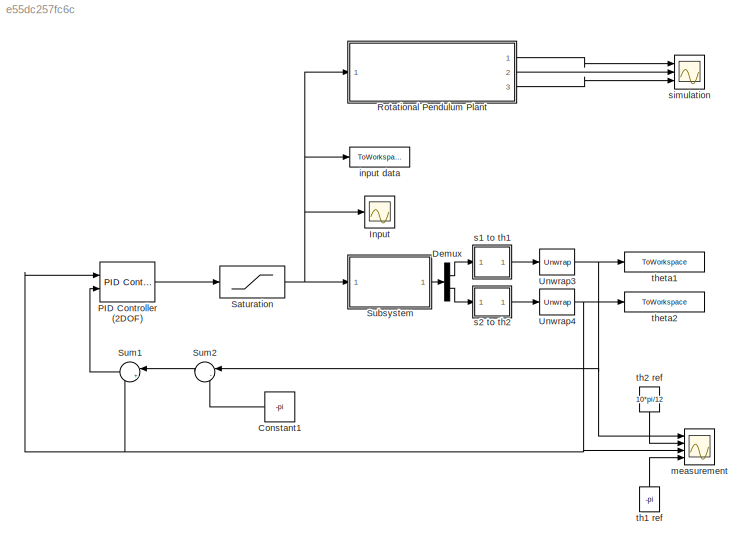
MODEL slx_e55dc257fc6c
KIND model
CONFIG AbsTol = auto
CONFIG EnableMultiTasking = on
CONFIG FixedStep = auto
CONFIG MaxStep = auto
CONFIG MinStep = auto
CONFIG RelTol = 1e-3
CONFIG SampleTimeConstraint = Unconstrained
CONFIG SolverName = ode45
CONFIG StartTime = 0.0
CONFIG StopTime = 60
BLOCK [Constant] Constant1
  NameLocation = top
  Value = -pi
BLOCK [Demux] Demux
  Outputs = 2
  Ports = [1, 2]
BLOCK [Scope] Input
  Floating = off
  NumInputPorts = 1
  Ports = [1]
  ScopeSpecificationString = Simulink.scopes.TimeScopeBlockCfg('CurrentConfiguration', extmgr.ConfigurationSet(extmgr.Configuration('Core','General UI',true),extmgr.Configuration('Core','Source UI',true),extmgr.Configuration('Sources','WiredSimulink',true,'DataLoggingVariableName','ScopeData2'),extmgr.Configuration('Visuals','Time Domain',true,'SerializedDisplays',{struct('MinYLimReal','-1.2343','MaxYLimReal','1.10873','YLabe...<+1472ch>
BLOCK [Reference] PID Controller (2DOF)  REF=pid_lib/PID Controller (2DOF)
  Ports = [2, 1]
  SourceBlock = pid_lib/PID Controller (2DOF)
  SourceProductBaseCode = SL
  SourceType = PID 2dof
BLOCK [ModelReference] Rotational Pendulum Plant
  Commented = on
  ModelNameDialog = Non_linear_model.slx
  ModelReferenceVersion = 3.13
  Ports = [1, 3]
BLOCK [Saturate] Saturation
  LowerLimit = -1
  UpperLimit = 1
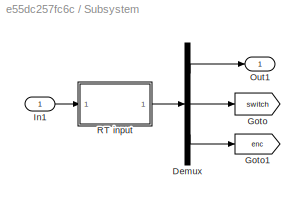
BLOCK [SubSystem] Subsystem
  Ports = [1, 1]
  RequestExecContextInheritance = off
BLOCK [Demux] Subsystem/Demux
  Outputs = [2 4 1]
  Ports = [1, 3]
BLOCK [Goto] Subsystem/Goto
  GotoTag = switch
  TagVisibility = global
BLOCK [Goto] Subsystem/Goto1
  GotoTag = enc
  TagVisibility = global
BLOCK [Inport] Subsystem/In1
BLOCK [Outport] Subsystem/Out1
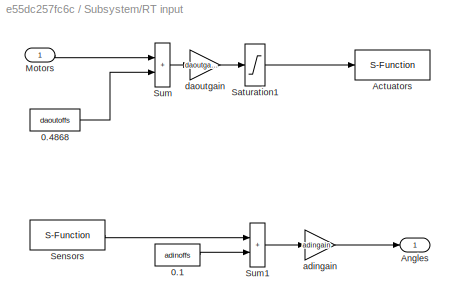
BLOCK [SubSystem] Subsystem/RT input
  Ports = [1, 1]
  RequestExecContextInheritance = off
BLOCK [Constant] Subsystem/RT input/0.1
  Value = adinoffs
BLOCK [Constant] Subsystem/RT input/0.4868
  Value = daoutoffs
BLOCK [S-Function] Subsystem/RT input/Actuators
  EnableBusSupport = off
  FunctionName = sfusbout
  Parameters = Ts, fugihandle
  Ports = [1]
  SFcnIsStateOwnerBlock = off
  SFunctionDeploymentMode = off
BLOCK [Outport] Subsystem/RT input/Angles
BLOCK [Inport] Subsystem/RT input/Motors
BLOCK [Saturate] Subsystem/RT input/Saturation1
  LowerLimit = -10
  UpperLimit = 10
BLOCK [S-Function] Subsystem/RT input/Sensors
  EnableBusSupport = off
  FunctionName = sfusbin
  Parameters = Ts, fugihandle, channels
  Ports = [0, 1]
  SFcnIsStateOwnerBlock = off
  SFunctionDeploymentMode = off
BLOCK [Sum] Subsystem/RT input/Sum
  IconShape = rectangular
  InputSameDT = on
  OutDataTypeStr = Inherit: Same as first input
  Ports = [2, 1]
  SaturateOnIntegerOverflow = on
BLOCK [Sum] Subsystem/RT input/Sum1
  IconShape = rectangular
  InputSameDT = on
  OutDataTypeStr = Inherit: Same as first input
  Ports = [2, 1]
  SaturateOnIntegerOverflow = on
BLOCK [Gain] Subsystem/RT input/adingain
  Gain = adingain
  OutDataTypeStr = Inherit: Same as input
  ParamDataTypeStr = Inherit: Same as input
  SaturateOnIntegerOverflow = on
BLOCK [Gain] Subsystem/RT input/daoutgain
  Gain = daoutgain
  OutDataTypeStr = Inherit: Same as input
  ParamDataTypeStr = Inherit: Same as input
  SaturateOnIntegerOverflow = on
BLOCK [Sum] Sum1
  Inputs = |+-
  NameLocation = top
  Ports = [2, 1]
BLOCK [Sum] Sum2
  Inputs = |-+
  NameLocation = top
  Ports = [2, 1]
BLOCK [Reference] Unwrap3  REF=dspsigops/Unwrap
  Ports = [1, 1]
  SourceBlock = dspsigops/Unwrap
  SourceProductBaseCode = DS
  SourceType = Unwrap
  UserDataPersistent = on
BLOCK [Reference] Unwrap4  REF=dspsigops/Unwrap
  Ports = [1, 1]
  SourceBlock = dspsigops/Unwrap
  SourceProductBaseCode = DS
  SourceType = Unwrap
  UserDataPersistent = on
BLOCK [ToWorkspace] input data
  FixptAsFi = on
  MaxDataPoints = inf
  Ports = [1]
  SampleTime = h
  SaveFormat = Timeseries
  VariableName = input_data
BLOCK [Scope] measurement
  Floating = off
  NumInputPorts = 4
  Ports = [4]
  ScopeSpecificationString = Simulink.scopes.TimeScopeBlockCfg('CurrentConfiguration', extmgr.ConfigurationSet(extmgr.Configuration('Core','General UI',true),extmgr.Configuration('Core','Source UI',true),extmgr.Configuration('Sources','WiredSimulink',true,'DataLoggingVariableName','measurement','DataLoggingSaveFormat','StructureWithTime'),extmgr.Configuration('Visuals','Time Domain',true,'SerializedDisplays',{struct('MinYLimR...<+1506ch>
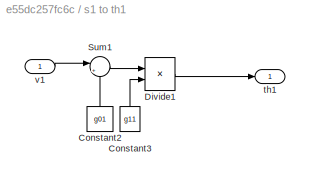
BLOCK [SubSystem] s1 to th1
  NameLocation = top
  Ports = [1, 1]
  RequestExecContextInheritance = off
BLOCK [Constant] s1 to th1/Constant2
  NameLocation = right
  Value = g01
BLOCK [Constant] s1 to th1/Constant3
  NameLocation = right
  Value = g11
BLOCK [Product] s1 to th1/Divide1
  Inputs = */
  Ports = [2, 1]
BLOCK [Sum] s1 to th1/Sum1
  Inputs = |+-
  Ports = [2, 1]
BLOCK [Outport] s1 to th1/th1
BLOCK [Inport] s1 to th1/v1
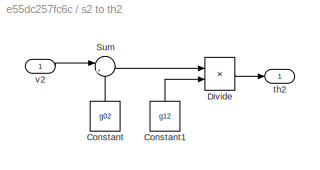
BLOCK [SubSystem] s2 to th2
  Ports = [1, 1]
  RequestExecContextInheritance = off
BLOCK [Constant] s2 to th2/Constant
  NameLocation = right
  Value = g02
BLOCK [Constant] s2 to th2/Constant1
  NameLocation = right
  Value = g12
BLOCK [Product] s2 to th2/Divide
  Inputs = */
  Ports = [2, 1]
BLOCK [Sum] s2 to th2/Sum
  Inputs = |+-
  NameLocation = top
  Ports = [2, 1]
BLOCK [Outport] s2 to th2/th2
BLOCK [Inport] s2 to th2/v2
BLOCK [Scope] simulation
  Commented = on
  Floating = off
  NumInputPorts = 3
  Ports = [3]
  ScopeSpecificationString = Simulink.scopes.TimeScopeBlockCfg('CurrentConfiguration', extmgr.ConfigurationSet(extmgr.Configuration('Core','General UI',true),extmgr.Configuration('Core','Source UI',true),extmgr.Configuration('Sources','WiredSimulink',true,'DataLoggingVariableName','ScopeData1'),extmgr.Configuration('Visuals','Time Domain',true,'SerializedDisplays',{struct('MinYLimReal','-17.53471','MaxYLimReal','6.40244','YLa...<+1588ch>
BLOCK [Constant] th1 ref
  NameLocation = right
  Value = -pi
BLOCK [Constant] th2 ref
  NameLocation = right
  Value = 10*pi/12
BLOCK [ToWorkspace] theta1
  FixptAsFi = on
  MaxDataPoints = inf
  NameLocation = top
  Ports = [1]
  SampleTime = h
  SaveFormat = Timeseries
  VariableName = th1_data
BLOCK [ToWorkspace] theta2
  FixptAsFi = on
  MaxDataPoints = inf
  Ports = [1]
  SampleTime = h
  SaveFormat = Timeseries
  VariableName = th2_data
LINE Constant1:1 -> Sum2:2
LINE Demux:1 -> s1 to th1:1
LINE Demux:2 -> s2 to th2:1
LINE PID Controller (2DOF):1 -> Saturation:1
LINE Rotational Pendulum Plant:1 -> simulation:1
LINE Rotational Pendulum Plant:2 -> simulation:2
LINE Rotational Pendulum Plant:3 -> simulation:3
NET Saturation:1 -> Input:1, Rotational Pendulum Plant:1, Subsystem:1, input data:1
LINE Subsystem/Demux:1 -> Subsystem/Out1:1
LINE Subsystem/Demux:2 -> Subsystem/Goto:1
LINE Subsystem/Demux:3 -> Subsystem/Goto1:1
LINE Subsystem/In1:1 -> Subsystem/RT input:1
LINE Subsystem/RT input/0.1:1 -> Subsystem/RT input/Sum1:2
LINE Subsystem/RT input/0.4868:1 -> Subsystem/RT input/Sum:2
LINE Subsystem/RT input/Motors:1 -> Subsystem/RT input/Sum:1
LINE Subsystem/RT input/Saturation1:1 -> Subsystem/RT input/Actuators:1
LINE Subsystem/RT input/Sensors:1 -> Subsystem/RT input/Sum1:1
LINE Subsystem/RT input/Sum1:1 -> Subsystem/RT input/adingain:1
LINE Subsystem/RT input/Sum:1 -> Subsystem/RT input/daoutgain:1
LINE Subsystem/RT input/adingain:1 -> Subsystem/RT input/Angles:1
LINE Subsystem/RT input/daoutgain:1 -> Subsystem/RT input/Saturation1:1
LINE Subsystem/RT input:1 -> Subsystem/Demux:1
LINE Subsystem:1 -> Demux:1
LINE Sum1:1 -> PID Controller (2DOF):2
LINE Sum2:1 -> Sum1:1
NET Unwrap3:1 -> Sum2:1, measurement:1, theta1:1
NET Unwrap4:1 -> PID Controller (2DOF):1, Sum1:2, measurement:3, theta2:1
LINE s1 to th1/Constant2:1 -> s1 to th1/Sum1:2
LINE s1 to th1/Constant3:1 -> s1 to th1/Divide1:2
LINE s1 to th1/Divide1:1 -> s1 to th1/th1:1
LINE s1 to th1/Sum1:1 -> s1 to th1/Divide1:1
LINE s1 to th1/v1:1 -> s1 to th1/Sum1:1
LINE s1 to th1:1 -> Unwrap3:1
LINE s2 to th2/Constant1:1 -> s2 to th2/Divide:2
LINE s2 to th2/Constant:1 -> s2 to th2/Sum:2
LINE s2 to th2/Divide:1 -> s2 to th2/th2:1
LINE s2 to th2/Sum:1 -> s2 to th2/Divide:1
LINE s2 to th2/v2:1 -> s2 to th2/Sum:1
LINE s2 to th2:1 -> Unwrap4:1
LINE th1 ref:1 -> measurement:4
LINE th2 ref:1 -> measurement:2
note: NET lines group one-source signal fan-out (src -> all destinations, sorted); 1:1 wires keep LINE
